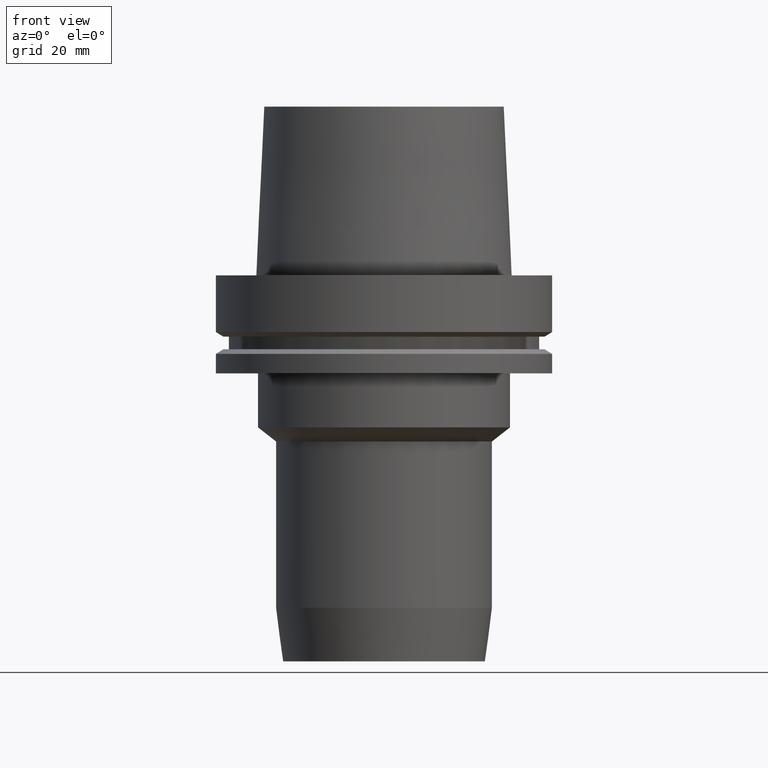
[diagram: clean part render]
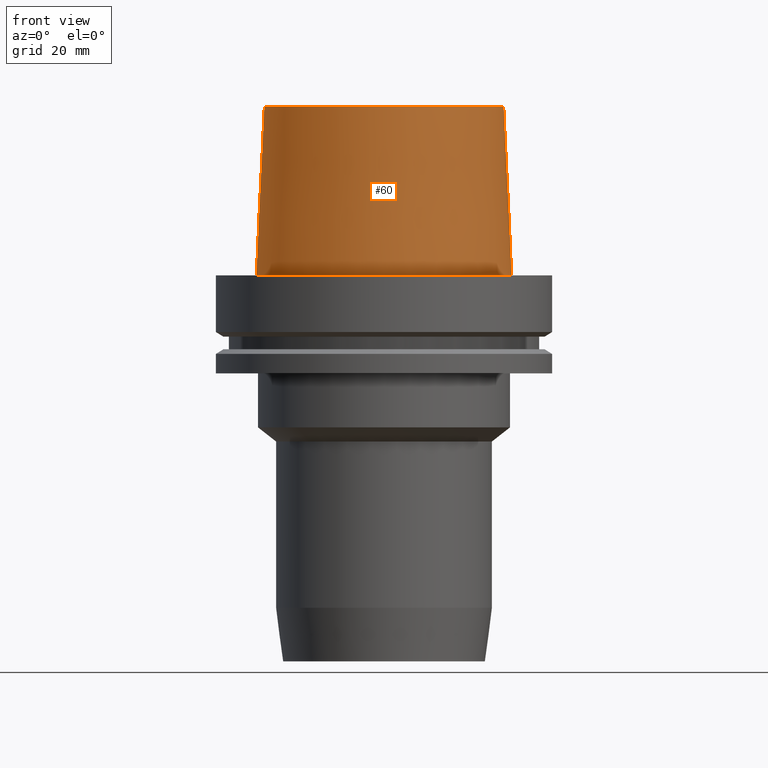
[diagram: same view with one face highlighted and labeled with its STEP entity id]
A machine part, front view. The second image highlights one B-rep face of the part: STEP entity #60.
In plain terms, the highlighted conical surface has half-angle 2.862 deg.
Its self-contained STEP definition (entity closure, byte-faithful):
#60=ADVANCED_FACE('Unnamed[1]',(#159,#160),#161,.T.);
#113=EDGE_CURVE('Unnamed[1]',#241,#241,#242,.T.);
#128=EDGE_CURVE('Unnamed[1]',#265,#265,#266,.T.);
#159=FACE_BOUND('',#293,.T.);
#160=FACE_BOUND('',#294,.T.);
#161=CONICAL_SURFACE('',#295,36.7500000007484,0.0499583956894843);
#241=VERTEX_POINT('',#395);
#242=CIRCLE('',#396,37.9999999999349);
#265=VERTEX_POINT('',#425);
#266=CIRCLE('',#426,35.5000000015618);
#293=EDGE_LOOP('',(#449));
#294=EDGE_LOOP('',(#450));
#295=AXIS2_PLACEMENT_3D('',#451,#452,#453);
#395=CARTESIAN_POINT('',(-3.3636548776863E-032,37.9999999999349,-2.44634216324803E-015));
#396=AXIS2_PLACEMENT_3D('',#540,#541,#542);
#425=CARTESIAN_POINT('',(-3.06161699786838E-015,35.5000000015618,50.0));
#426=AXIS2_PLACEMENT_3D('',#567,#568,#569);
#449=ORIENTED_EDGE('',*,*,#113,.F.);
#450=ORIENTED_EDGE('',*,*,#128,.T.);
#451=CARTESIAN_POINT('',(-1.53080849893419E-015,-3.06161699786838E-015,25.0));
#452=DIRECTION('',(6.12323399573676E-017,1.22464679914735E-016,-1.0));
#453=DIRECTION('',(-1.23259516440783E-032,1.0,1.22464679914735E-016));
#540=CARTESIAN_POINT('',(0.0,0.0,0.0));
#541=DIRECTION('',(6.12323399573677E-017,1.22464679914735E-016,-1.0));
#542=DIRECTION('',(-1.23259516440783E-032,1.0,1.22464679914735E-016));
#567=CARTESIAN_POINT('',(-3.06161699786838E-015,-6.12323399573676E-015,50.0));
#568=DIRECTION('',(6.12323399573677E-017,1.22464679914735E-016,-1.0));
#569=DIRECTION('',(-1.23259516440783E-032,1.0,1.22464679914735E-016));